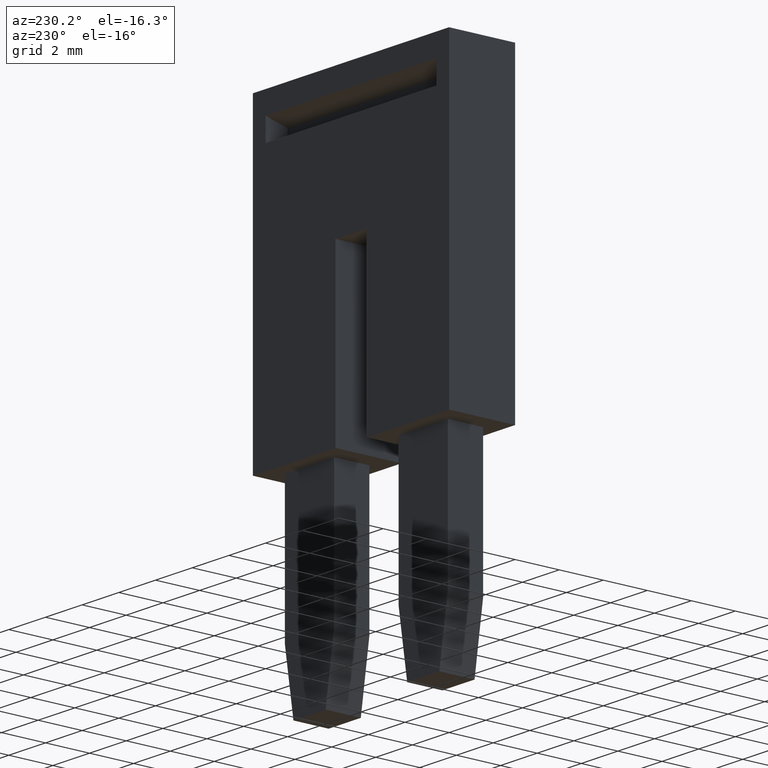
[diagram: clean part render]
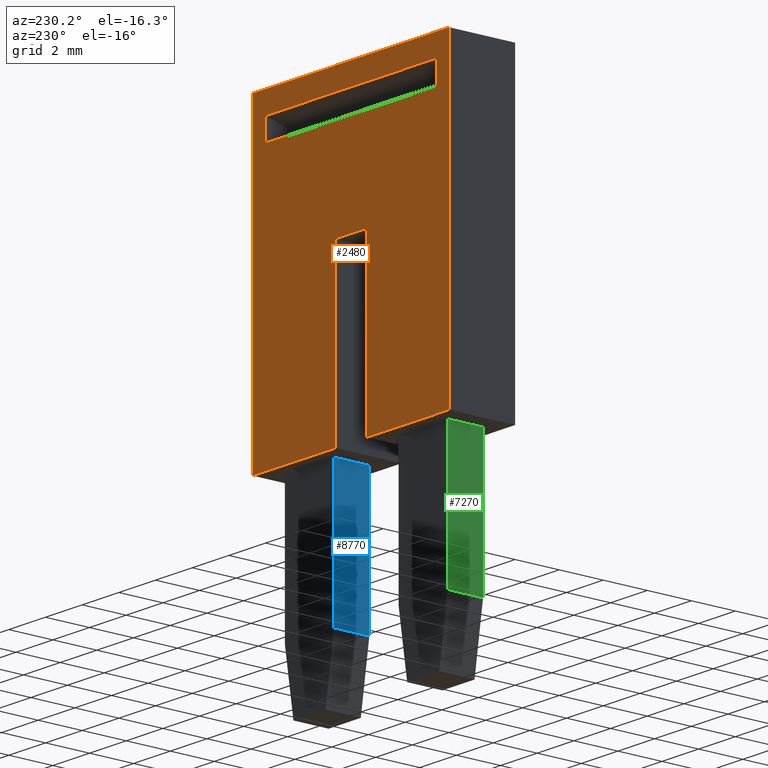
[diagram: same view with three faces highlighted in distinct colors, each labeled with its STEP entity id]
A machine part, auxiliary view with three faces highlighted in distinct colors.
Their STEP definitions:

[orange] entity #2480 — the highlighted planar face has unit normal (-0, 1, 0).
#1230=CARTESIAN_POINT('',(5.60716722168538,-9.17500000000041,
60.7099999999988));
#1240=VERTEX_POINT('',#1230);
#1320=CARTESIAN_POINT('',(5.60716722168538,-9.17500000000041,
50.0099999999988));
#1330=VERTEX_POINT('',#1320);
#1360=CARTESIAN_POINT('',(5.60716722168538,-9.17500000000041,
63.6950159999975));
#1370=DIRECTION('',(0.,-6.93889390390723E-17,1.));
#1380=VECTOR('',#1370,1.);
#1390=LINE('',#1360,#1380);
#1400=EDGE_CURVE('',#1330,#1240,#1390,.T.);
#1520=CARTESIAN_POINT('',(5.60716722168538,-10.416373989214,
63.7755163824959));
#1530=DIRECTION('',(1.,0.,0.));
#1540=DIRECTION('',(0.,-1.,-6.93889390390723E-17));
#1550=AXIS2_PLACEMENT_3D('',#1520,#1530,#1540);
#1560=PLANE('',#1550);
#1570=CARTESIAN_POINT('',(5.60716722168538,-10.1410254037881,47.074984))
;
#1580=DIRECTION('',(0.,-6.93889390390723E-17,1.));
#1590=VECTOR('',#1580,1.);
#1600=LINE('',#1570,#1590);
#1610=CARTESIAN_POINT('',(5.60716722168538,-10.1410254037881,
50.7099999999988));
#1620=VERTEX_POINT('',#1610);
#1630=CARTESIAN_POINT('',(5.60716722168538,-10.1410254037881,
60.0099999999988));
#1640=VERTEX_POINT('',#1630);
#1650=EDGE_CURVE('',#1620,#1640,#1600,.T.);
#1660=ORIENTED_EDGE('',*,*,#1650,.F.);
#1670=CARTESIAN_POINT('',(5.60716722168538,-12.305124,60.0099999999988))
;
#1680=DIRECTION('',(0.,-1.,-6.93889390390723E-17));
#1690=VECTOR('',#1680,1.);
#1700=LINE('',#1670,#1690);
#1710=CARTESIAN_POINT('',(5.60716722168538,-11.1389702342699,
60.0099999999988));
#1720=VERTEX_POINT('',#1710);
#1730=EDGE_CURVE('',#1640,#1720,#1700,.T.);
#1740=ORIENTED_EDGE('',*,*,#1730,.F.);
#1750=CARTESIAN_POINT('',(5.60716722168538,-11.1389702342699,47.074984))
;
#1760=DIRECTION('',(0.,6.93889390390723E-17,-1.));
#1770=VECTOR('',#1760,1.);
#1780=LINE('',#1750,#1770);
#1790=CARTESIAN_POINT('',(5.60716722168538,-11.1389702342699,
50.7099999999988));
#1800=VERTEX_POINT('',#1790);
#1810=EDGE_CURVE('',#1720,#1800,#1780,.T.);
#1820=ORIENTED_EDGE('',*,*,#1810,.F.);
#1830=CARTESIAN_POINT('',(5.60716722168538,-12.305124,50.7099999999988))
;
#1840=DIRECTION('',(0.,1.,6.93889390390723E-17));
#1850=VECTOR('',#1840,1.);
#1860=LINE('',#1830,#1850);
#1870=EDGE_CURVE('',#1800,#1620,#1860,.T.);
#1880=ORIENTED_EDGE('',*,*,#1870,.F.);
#1890=EDGE_LOOP('',(#1880,#1820,#1740,#1660));
#1900=FACE_BOUND('',#1890,.T.);
#1910=CARTESIAN_POINT('',(5.60716722168538,-12.605124,50.0099999999988))
;
#1920=DIRECTION('',(0.,1.,6.93889390390723E-17));
#1930=VECTOR('',#1920,1.);
#1940=LINE('',#1910,#1930);
#1950=CARTESIAN_POINT('',(5.60716722168538,-23.0750000000004,
50.0099999999988));
#1960=VERTEX_POINT('',#1950);
#1970=EDGE_CURVE('',#1960,#1330,#1940,.T.);
#1980=ORIENTED_EDGE('',*,*,#1970,.T.);
#1990=CARTESIAN_POINT('',(5.60716722168538,-23.0750000000004,
63.6950159999975));
#2000=DIRECTION('',(0.,6.93889390390723E-17,-1.));
#2010=VECTOR('',#2000,1.);
#2020=LINE('',#1990,#2010);
#2030=CARTESIAN_POINT('',(5.60716722168538,-23.0750000000004,
54.5099999999988));
#2040=VERTEX_POINT('',#2030);
#2050=EDGE_CURVE('',#2040,#1960,#2020,.T.);
#2060=ORIENTED_EDGE('',*,*,#2050,.T.);
#2070=CARTESIAN_POINT('',(5.60716722168538,-12.605124,54.5099999999988))
;
#2080=DIRECTION('',(0.,1.,6.93889390390723E-17));
#2090=VECTOR('',#2080,1.);
#2100=LINE('',#2070,#2090);
#2110=CARTESIAN_POINT('',(5.60716722168538,-15.4750000000004,
54.5099999999988));
#2120=VERTEX_POINT('',#2110);
#2130=EDGE_CURVE('',#2040,#2120,#2100,.T.);
#2140=ORIENTED_EDGE('',*,*,#2130,.F.);
#2150=CARTESIAN_POINT('',(5.60716722168538,-15.4750000000004,
63.6450159999975));
#2160=DIRECTION('',(0.,-6.93889390390723E-17,1.));
#2170=VECTOR('',#2160,1.);
#2180=LINE('',#2150,#2170);
#2190=CARTESIAN_POINT('',(5.60716722168538,-15.4750000000004,
56.2099999999988));
#2200=VERTEX_POINT('',#2190);
#2210=EDGE_CURVE('',#2120,#2200,#2180,.T.);
#2220=ORIENTED_EDGE('',*,*,#2210,.F.);
#2230=CARTESIAN_POINT('',(5.60716722168538,-12.605124,56.2099999999988))
;
#2240=DIRECTION('',(0.,-1.,-6.93889390390723E-17));
#2250=VECTOR('',#2240,1.);
#2260=LINE('',#2230,#2250);
#2270=CARTESIAN_POINT('',(5.60716722168538,-23.0750000000004,
56.2099999999988));
#2280=VERTEX_POINT('',#2270);
#2290=EDGE_CURVE('',#2200,#2280,#2260,.T.);
#2300=ORIENTED_EDGE('',*,*,#2290,.F.);
#2310=CARTESIAN_POINT('',(5.60716722168538,-23.0750000000004,
63.6950159999975));
#2320=DIRECTION('',(0.,6.93889390390723E-17,-1.));
#2330=VECTOR('',#2320,1.);
#2340=LINE('',#2310,#2330);
#2350=CARTESIAN_POINT('',(5.60716722168538,-23.0750000000004,
60.7099999999988));
#2360=VERTEX_POINT('',#2350);
#2370=EDGE_CURVE('',#2360,#2280,#2340,.T.);
#2380=ORIENTED_EDGE('',*,*,#2370,.T.);
#2390=CARTESIAN_POINT('',(5.60716722168538,-12.605124,60.7099999999988))
;
#2400=DIRECTION('',(0.,1.,6.93889390390723E-17));
#2410=VECTOR('',#2400,1.);
#2420=LINE('',#2390,#2410);
#2430=EDGE_CURVE('',#2360,#1240,#2420,.T.);
#2440=ORIENTED_EDGE('',*,*,#2430,.F.);
#2450=ORIENTED_EDGE('',*,*,#1400,.T.);
#2460=EDGE_LOOP('',(#2450,#2440,#2380,#2300,#2220,#2140,#2060,#1980));
#2470=FACE_OUTER_BOUND('',#2460,.T.);
#2480=ADVANCED_FACE('',(#1900,#2470),#1560,.T.);

[blue] entity #8770 — the highlighted planar face has unit normal (1, -0, -0).
#4200=CARTESIAN_POINT('',(2.60716722168538,-23.0750000000004,
57.1199999990321));
#4210=DIRECTION('',(-1.,1.08709415017381E-48,-1.68703840060881E-32));
#4220=VECTOR('',#4210,1.);
#4230=LINE('',#4200,#4220);
#4240=CARTESIAN_POINT('',(4.90716722167563,-23.0750000000004,
57.1199999990321));
#4250=VERTEX_POINT('',#4240);
#4260=CARTESIAN_POINT('',(3.30716722167563,-23.0750000000004,
57.1199999990321));
#4270=VERTEX_POINT('',#4260);
#4280=EDGE_CURVE('',#4250,#4270,#4230,.T.);
#5140=CARTESIAN_POINT('',(3.30716722167563,-29.2807420505056,
57.1199999990321));
#5150=VERTEX_POINT('',#5140);
#5180=CARTESIAN_POINT('',(3.30716722167563,-23.974999320925,
57.1199999990321));
#5190=DIRECTION('',(1.22464679914735E-16,1.,1.36084731517553E-16));
#5200=VECTOR('',#5190,1.);
#5210=LINE('',#5180,#5200);
#5220=EDGE_CURVE('',#5150,#4270,#5210,.T.);
#5940=CARTESIAN_POINT('',(4.90716722167563,-12.305124,57.1199999990321))
;
#5950=DIRECTION('',(-1.22464679914735E-16,-1.,-1.36084731517553E-16));
#5960=VECTOR('',#5950,1.);
#5970=LINE('',#5940,#5960);
#5980=CARTESIAN_POINT('',(4.90716722167563,-29.2807420505056,
57.1199999990321));
#5990=VERTEX_POINT('',#5980);
#6000=EDGE_CURVE('',#4250,#5990,#5970,.T.);
#7760=CARTESIAN_POINT('',(5.60716722168535,-29.2807420505056,
57.1199999990321));
#7770=DIRECTION('',(1.,-1.22464679914735E-16,-2.41695299878726E-33));
#7780=VECTOR('',#7770,1.);
#7790=LINE('',#7760,#7780);
#7800=EDGE_CURVE('',#5150,#5990,#7790,.T.);
#8660=CARTESIAN_POINT('',(4.90716722167563,-21.7849999999905,
57.1199999990321));
#8670=DIRECTION('',(-1.68703840060881E-32,-1.36084731517553E-16,1.));
#8680=DIRECTION('',(1.22464679914735E-16,1.,1.36084731517553E-16));
#8690=AXIS2_PLACEMENT_3D('',#8660,#8670,#8680);
#8700=PLANE('',#8690);
#8710=ORIENTED_EDGE('',*,*,#7800,.F.);
#8720=ORIENTED_EDGE('',*,*,#6000,.T.);
#8730=ORIENTED_EDGE('',*,*,#4280,.F.);
#8740=ORIENTED_EDGE('',*,*,#5220,.T.);
#8750=EDGE_LOOP('',(#8740,#8730,#8720,#8710));
#8760=FACE_OUTER_BOUND('',#8750,.T.);
#8770=ADVANCED_FACE('',(#8760),#8700,.F.);

[green] entity #7270 — the highlighted planar face has unit normal (1, -0, -0).
#3520=CARTESIAN_POINT('',(3.30716722167563,-23.0750000000004,
50.9199999992303));
#3530=VERTEX_POINT('',#3520);
#3560=CARTESIAN_POINT('',(2.60716722168538,-23.0750000000004,
50.9199999992303));
#3570=DIRECTION('',(-1.,1.87110098659717E-42,-2.69654082629433E-26));
#3580=VECTOR('',#3570,1.);
#3590=LINE('',#3560,#3580);
#3600=CARTESIAN_POINT('',(4.90716722167563,-23.0750000000004,
50.9199999992303));
#3610=VERTEX_POINT('',#3600);
#3620=EDGE_CURVE('',#3610,#3530,#3590,.T.);
#5520=CARTESIAN_POINT('',(4.90716722167563,-29.2807420432734,
50.9199999978638));
#5530=VERTEX_POINT('',#5520);
#5560=CARTESIAN_POINT('',(5.60716722168535,-29.2807420432734,
50.9199999978638));
#5570=DIRECTION('',(1.,-1.22464679914735E-16,0.));
#5580=VECTOR('',#5570,1.);
#5590=LINE('',#5560,#5580);
#5600=CARTESIAN_POINT('',(3.30716722167563,-29.2807420432734,
50.9199999978638));
#5610=VERTEX_POINT('',#5600);
#5620=EDGE_CURVE('',#5610,#5530,#5590,.T.);
#6430=CARTESIAN_POINT('',(4.90716722167563,-23.9749993209257,
50.9199999990321));
#6440=DIRECTION('',(1.22464679914735E-16,1.,2.20189266626972E-10));
#6450=VECTOR('',#6440,1.);
#6460=LINE('',#6430,#6450);
#6470=EDGE_CURVE('',#5530,#3610,#6460,.T.);
#7110=CARTESIAN_POINT('',(4.90716722167563,-21.7849999995079,
50.9199999995143));
#7120=DIRECTION('',(-2.69654082629433E-26,-2.20189266626972E-10,1.));
#7130=DIRECTION('',(1.22464679914735E-16,1.,2.20189266626972E-10));
#7140=AXIS2_PLACEMENT_3D('',#7110,#7120,#7130);
#7150=PLANE('',#7140);
#7160=ORIENTED_EDGE('',*,*,#5620,.F.);
#7170=ORIENTED_EDGE('',*,*,#6470,.F.);
#7180=ORIENTED_EDGE('',*,*,#3620,.F.);
#7190=CARTESIAN_POINT('',(3.30716722167563,-12.305124,50.9200000016017))
;
#7200=DIRECTION('',(-1.22464679907692E-16,-1.,-2.20189266626972E-10));
#7210=VECTOR('',#7200,1.);
#7220=LINE('',#7190,#7210);
#7230=EDGE_CURVE('',#3530,#5610,#7220,.T.);
#7240=ORIENTED_EDGE('',*,*,#7230,.F.);
#7250=EDGE_LOOP('',(#7240,#7180,#7170,#7160));
#7260=FACE_OUTER_BOUND('',#7250,.T.);
#7270=ADVANCED_FACE('',(#7260),#7150,.F.);